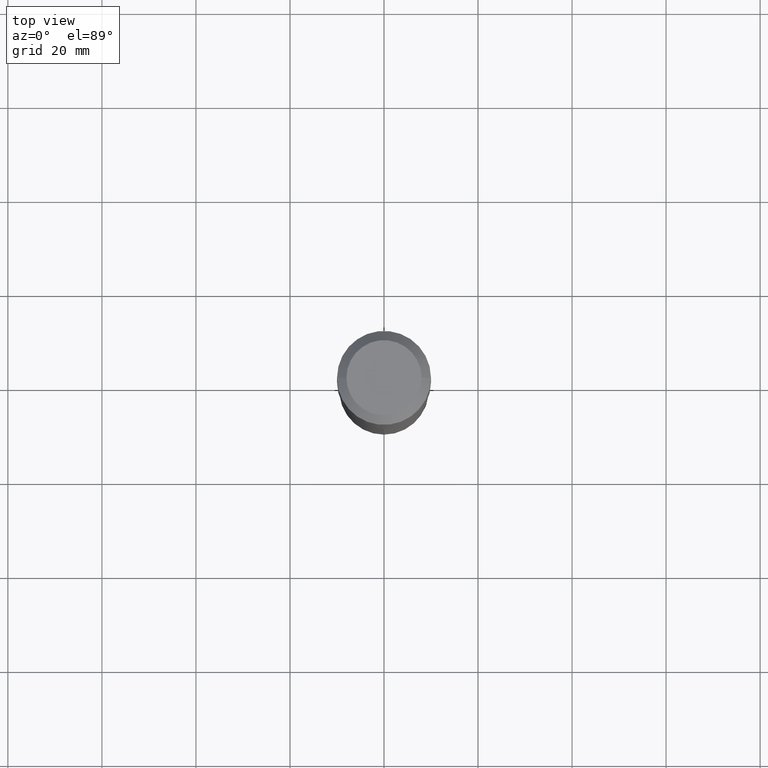
[diagram: clean part render]
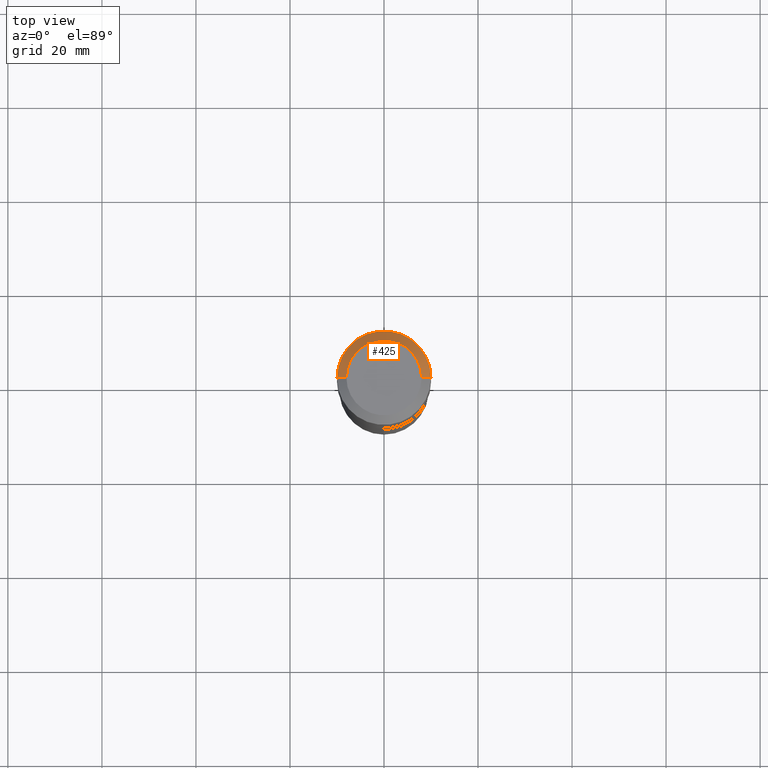
[diagram: same view with one face highlighted and labeled with its STEP entity id]
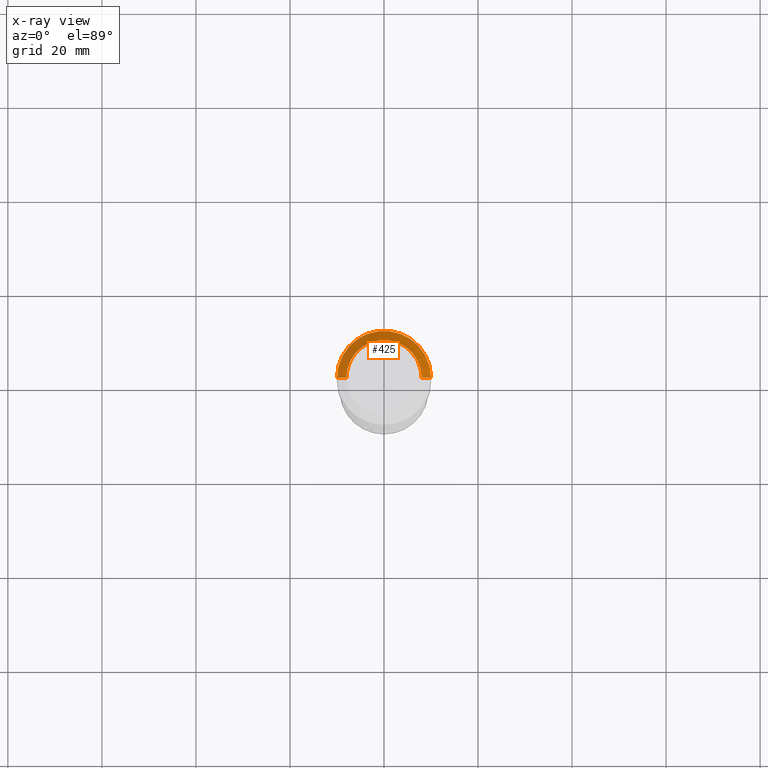
[diagram: x-ray of the same camera — body ghosted, the highlighted face saturated]
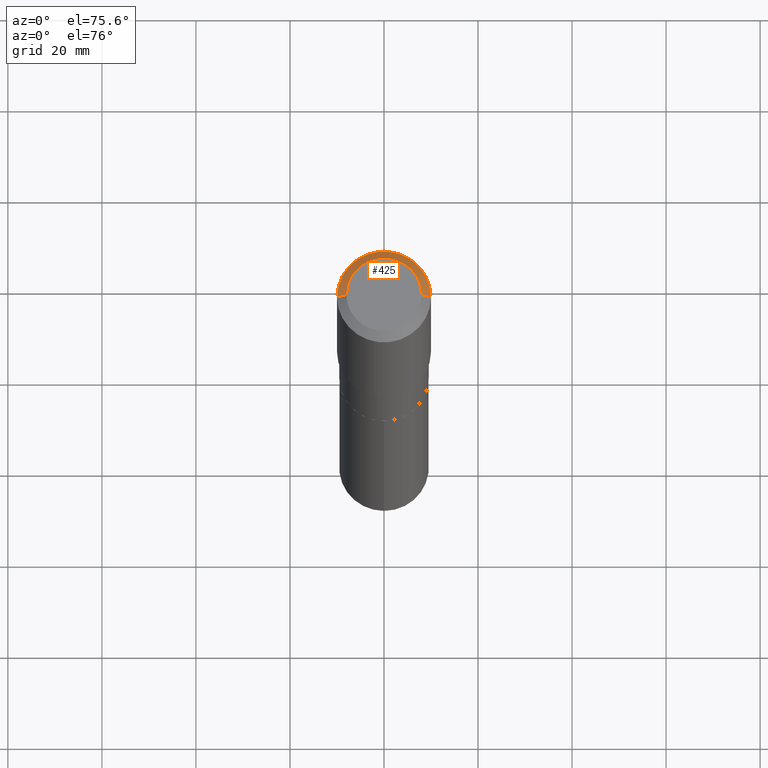
[diagram: same view with one face highlighted and labeled with its STEP entity id]
A machine part, top view. The second image highlights one B-rep face of the part: STEP entity #425.
The next image is the same camera in x-ray: the body ghosted, the highlighted face saturated — about 0% of this face is hidden behind the body in this view.
A second angle (auxiliary view) of the same face is appended — the face is thin or edge-on in the first view.
In plain terms, the highlighted conical surface has half-angle 45 deg.
Its self-contained STEP definition (entity closure, byte-faithful):
#17 = LINE ( 'NONE', #177, #260 ) ;
#18 = CIRCLE ( 'NONE', #475, 0.3937000000000000499 ) ;
#38 = CARTESIAN_POINT ( 'NONE',  ( -0.3937000000000000499, -6.862885847700110678E-16, -0.07874000000000049015 ) ) ;
#41 = DIRECTION ( 'NONE',  ( 2.445468806185136597E-29, -3.491481338843145583E-15, -1.000000000000000000 ) ) ;
#54 = DIRECTION ( 'NONE',  ( 1.000000000000000000, -6.982962677686265922E-15, 0.000000000000000000 ) ) ;
#58 = AXIS2_PLACEMENT_3D ( 'NONE', #83, #41, #151 ) ;
#60 = DIRECTION ( 'NONE',  ( -2.445468806185136597E-29, 3.491481338843145583E-15, 1.000000000000000000 ) ) ;
#63 = ORIENTED_EDGE ( 'NONE', *, *, #336, .T. ) ;
#68 = ORIENTED_EDGE ( 'NONE', *, *, #193, .F. ) ;
#83 = CARTESIAN_POINT ( 'NONE',  ( 1.925562137990188729E-30, -2.749192406205110629E-16, -0.07874000000000049015 ) ) ;
#86 = DIRECTION ( 'NONE',  ( 0.7071067811865453523, -7.319954787623248157E-15, -0.7071067811865496822 ) ) ;
#105 = VERTEX_POINT ( 'NONE', #488 ) ;
#113 = CARTESIAN_POINT ( 'NONE',  ( -9.427742298522567634E-47, 1.346031739168368355E-32, 3.855188123715870730E-18 ) ) ;
#128 = EDGE_CURVE ( 'NONE', #145, #217, #160, .T. ) ;
#145 = VERTEX_POINT ( 'NONE', #201 ) ;
#151 = DIRECTION ( 'NONE',  ( -1.000000000000000000, 6.982962677686265922E-15, 0.000000000000000000 ) ) ;
#160 = LINE ( 'NONE', #452, #437 ) ;
#169 = ORIENTED_EDGE ( 'NONE', *, *, #128, .T. ) ;
#171 = DIRECTION ( 'NONE',  ( 1.000000000000000000, -6.982962677686265922E-15, 4.876223630392693006E-29 ) ) ;
#175 = DIRECTION ( 'NONE',  ( -0.7071067811865453523, 2.468850131082234184E-15, -0.7071067811865496822 ) ) ;
#177 = CARTESIAN_POINT ( 'NONE',  ( -0.3937000000000000499, 2.474273165584572449E-15, -0.07874000000000049015 ) ) ;
#193 = EDGE_CURVE ( 'NONE', #145, #105, #197, .T. ) ;
#197 = CIRCLE ( 'NONE', #461, 0.3149600000000000177 ) ;
#201 = CARTESIAN_POINT ( 'NONE',  ( 0.3149600000000000177, -2.568339875860642378E-15, 3.855188123732540039E-18 ) ) ;
#217 = VERTEX_POINT ( 'NONE', #229 ) ;
#225 = FACE_OUTER_BOUND ( 'NONE', #244, .T. ) ;
#229 = CARTESIAN_POINT ( 'NONE',  ( 0.3937000000000000499, -3.024111646825594378E-15, -0.07874000000000049015 ) ) ;
#244 = EDGE_LOOP ( 'NONE', ( #68, #169, #63, #367 ) ) ;
#260 = VECTOR ( 'NONE', #175, 39.37007874015748143 ) ;
#275 = EDGE_CURVE ( 'NONE', #105, #435, #17, .T. ) ;
#336 = EDGE_CURVE ( 'NONE', #217, #435, #18, .T. ) ;
#354 = DIRECTION ( 'NONE',  ( -2.445468806185136597E-29, 3.491481338843145583E-15, 1.000000000000000000 ) ) ;
#367 = ORIENTED_EDGE ( 'NONE', *, *, #275, .F. ) ;
#390 = CARTESIAN_POINT ( 'NONE',  ( 1.925562137990188729E-30, -2.749192406205110629E-16, -0.07874000000000049015 ) ) ;
#415 = CONICAL_SURFACE ( 'NONE', #58, 0.3937000000000000499, 0.7853981633974452814 ) ;
#425 = ADVANCED_FACE ( 'NONE', ( #225 ), #415, .T. ) ;
#435 = VERTEX_POINT ( 'NONE', #38 ) ;
#437 = VECTOR ( 'NONE', #86, 39.37007874015748143 ) ;
#452 = CARTESIAN_POINT ( 'NONE',  ( 0.3937000000000000499, -2.975897302343163203E-15, -0.07874000000000049015 ) ) ;
#461 = AXIS2_PLACEMENT_3D ( 'NONE', #113, #354, #171 ) ;
#475 = AXIS2_PLACEMENT_3D ( 'NONE', #390, #60, #54 ) ;
#488 = CARTESIAN_POINT ( 'NONE',  ( -0.3149600000000000177, 2.336813545274319235E-15, 3.855188123700009542E-18 ) ) ;